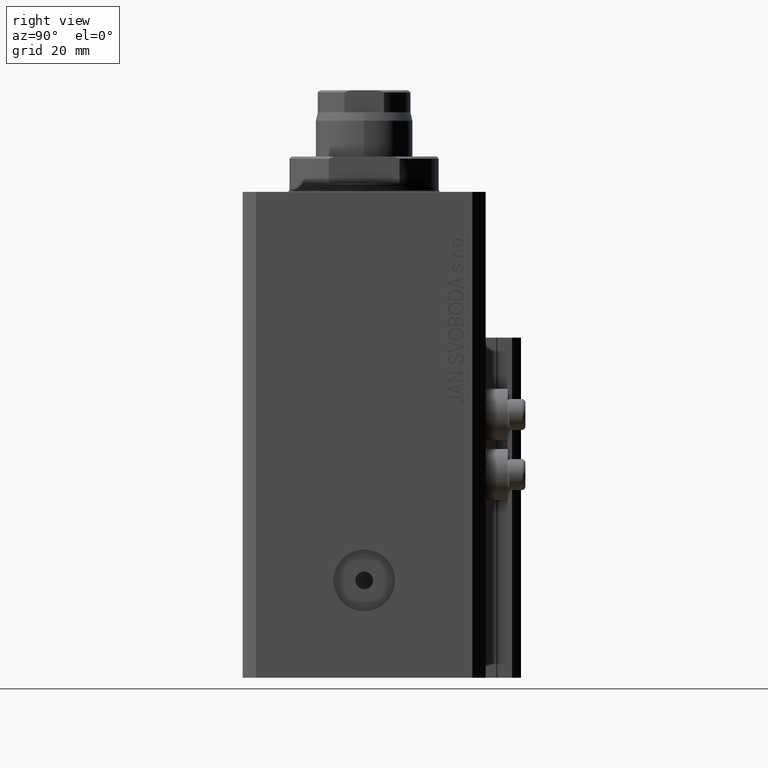
[diagram: clean part render]
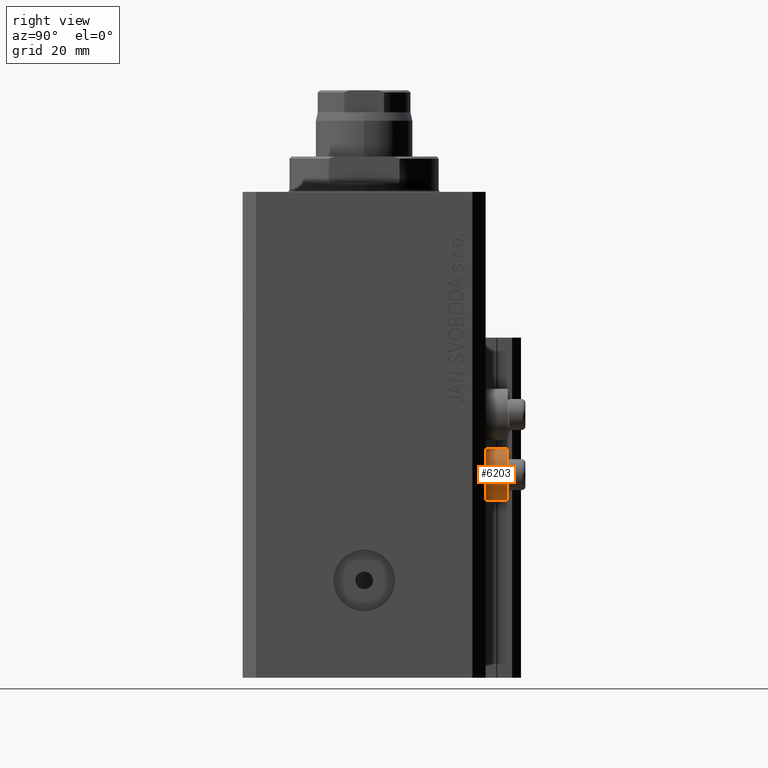
[diagram: same view with one face highlighted and labeled with its STEP entity id]
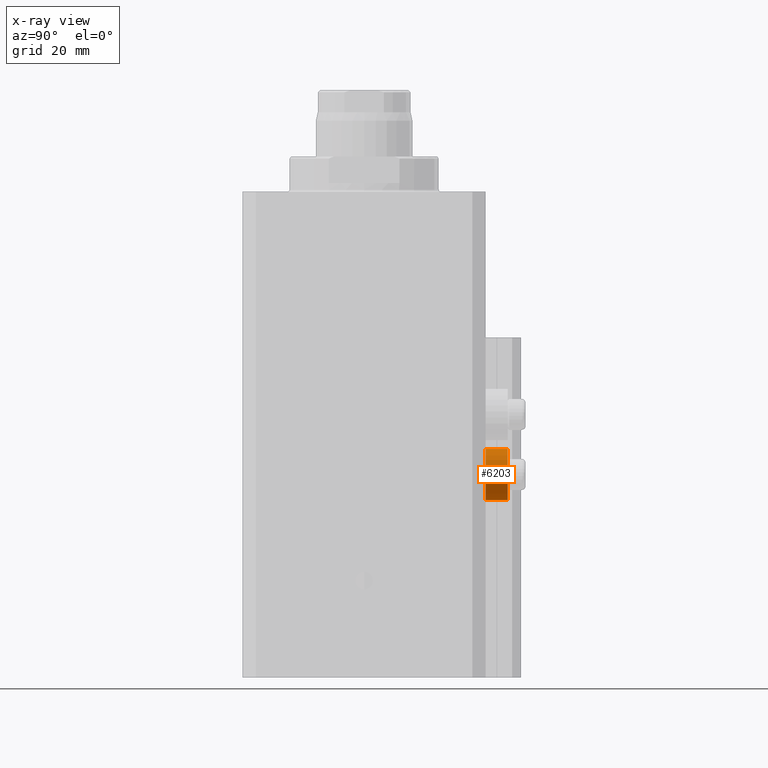
[diagram: x-ray of the same camera — body ghosted, the highlighted face saturated]
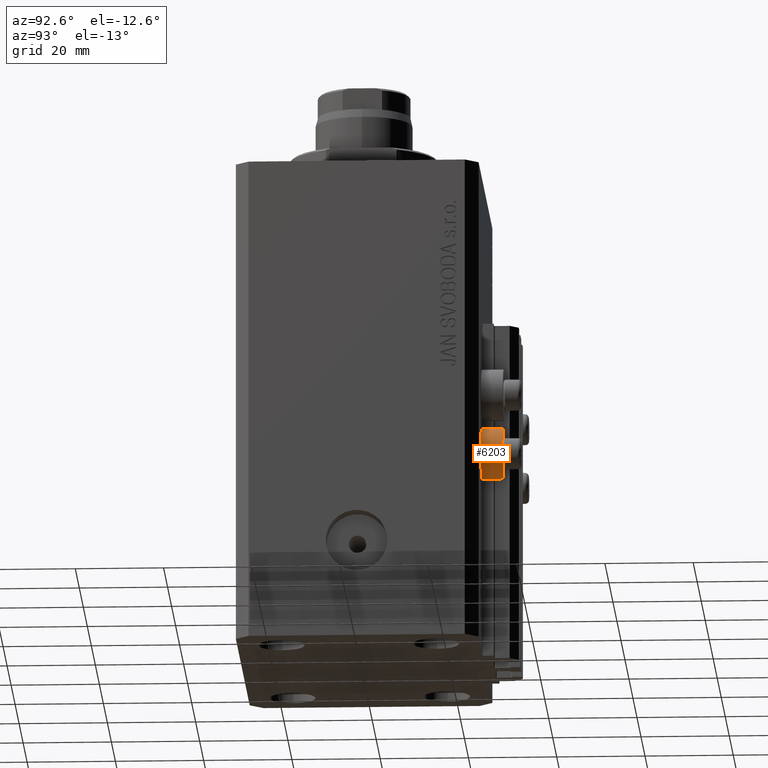
[diagram: same view with one face highlighted and labeled with its STEP entity id]
A machine part, right view. The second image highlights one B-rep face of the part: STEP entity #6203.
The next image is the same camera in x-ray: the body ghosted, the highlighted face saturated — about 0% of this face is hidden behind the body in this view.
A second angle (auxiliary view) of the same face is appended — the face is thin or edge-on in the first view.
In plain terms, the highlighted cylindrical surface (edge-blend (fillet) strip) has radius 5.8 mm, axis along (0, 1, 0).
Its self-contained STEP definition (entity closure, byte-faithful):
#4264 = AXIS2_PLACEMENT_3D ( 'NONE', #18355, #14097, #43193 ) ;
#4718 = VECTOR ( 'NONE', #22020, 1000.000000000000000 ) ;
#4812 = CARTESIAN_POINT ( 'NONE',  ( 18.00000000000000355, 32.49999999996100541, -64.00000000000000000 ) ) ;
#6203 = ADVANCED_FACE ( 'NONE', ( #19723 ), #34162, .T. ) ;
#6895 = DIRECTION ( 'NONE',  ( 0.000000000000000000, 0.000000000000000000, -1.000000000000000000 ) ) ;
#7806 = CARTESIAN_POINT ( 'NONE',  ( 18.00000000000000355, 32.49999999996100541, -58.20000000000000284 ) ) ;
#9108 = EDGE_LOOP ( 'NONE', ( #26779, #31611, #19562, #19354 ) ) ;
#10297 = VERTEX_POINT ( 'NONE', #30503 ) ;
#11163 = VERTEX_POINT ( 'NONE', #46546 ) ;
#12616 = DIRECTION ( 'NONE',  ( 0.000000000000000000, 0.000000000000000000, -1.000000000000000000 ) ) ;
#14097 = DIRECTION ( 'NONE',  ( 0.000000000000000000, 1.000000000000000000, 0.000000000000000000 ) ) ;
#17783 = CARTESIAN_POINT ( 'NONE',  ( 18.00000000000000355, 32.49999999996100541, -64.00000000000000000 ) ) ;
#18355 = CARTESIAN_POINT ( 'NONE',  ( 18.00000000000000355, 27.50000000000000000, -64.00000000000000000 ) ) ;
#19354 = ORIENTED_EDGE ( 'NONE', *, *, #19374, .F. ) ;
#19374 = EDGE_CURVE ( 'NONE', #32280, #10297, #46049, .T. ) ;
#19562 = ORIENTED_EDGE ( 'NONE', *, *, #25169, .T. ) ;
#19723 = FACE_OUTER_BOUND ( 'NONE', #9108, .T. ) ;
#20648 = DIRECTION ( 'NONE',  ( 0.000000000000000000, 1.000000000000000000, 0.000000000000000000 ) ) ;
#22020 = DIRECTION ( 'NONE',  ( 0.000000000000000000, 1.000000000000000000, 0.000000000000000000 ) ) ;
#24658 = CIRCLE ( 'NONE', #4264, 5.799999999999999822 ) ;
#25015 = VERTEX_POINT ( 'NONE', #26731 ) ;
#25169 = EDGE_CURVE ( 'NONE', #25015, #10297, #32589, .T. ) ;
#26731 = CARTESIAN_POINT ( 'NONE',  ( 18.00000000000000355, 27.50000000000000000, -69.79999999999999716 ) ) ;
#26779 = ORIENTED_EDGE ( 'NONE', *, *, #43799, .F. ) ;
#27930 = AXIS2_PLACEMENT_3D ( 'NONE', #17783, #20648, #6895 ) ;
#28934 = VECTOR ( 'NONE', #29051, 1000.000000000000000 ) ;
#29051 = DIRECTION ( 'NONE',  ( 0.000000000000000000, 1.000000000000000000, 0.000000000000000000 ) ) ;
#29140 = CARTESIAN_POINT ( 'NONE',  ( 18.00000000000000355, 32.49999999996100541, -58.20000000000000284 ) ) ;
#29367 = LINE ( 'NONE', #29140, #4718 ) ;
#30503 = CARTESIAN_POINT ( 'NONE',  ( 18.00000000000000355, 32.49999999996100541, -69.79999999999999716 ) ) ;
#31611 = ORIENTED_EDGE ( 'NONE', *, *, #33630, .T. ) ;
#32280 = VERTEX_POINT ( 'NONE', #7806 ) ;
#32589 = LINE ( 'NONE', #36369, #28934 ) ;
#33630 = EDGE_CURVE ( 'NONE', #11163, #25015, #24658, .T. ) ;
#34162 = CYLINDRICAL_SURFACE ( 'NONE', #38070, 5.799999999999999822 ) ;
#36369 = CARTESIAN_POINT ( 'NONE',  ( 18.00000000000000355, 32.49999999996100541, -69.79999999999999716 ) ) ;
#37228 = DIRECTION ( 'NONE',  ( 0.000000000000000000, 1.000000000000000000, 0.000000000000000000 ) ) ;
#38070 = AXIS2_PLACEMENT_3D ( 'NONE', #4812, #37228, #12616 ) ;
#43193 = DIRECTION ( 'NONE',  ( 0.000000000000000000, 0.000000000000000000, -1.000000000000000000 ) ) ;
#43799 = EDGE_CURVE ( 'NONE', #11163, #32280, #29367, .T. ) ;
#46049 = CIRCLE ( 'NONE', #27930, 5.799999999999999822 ) ;
#46546 = CARTESIAN_POINT ( 'NONE',  ( 18.00000000000000355, 27.50000000000000000, -58.20000000000000284 ) ) ;